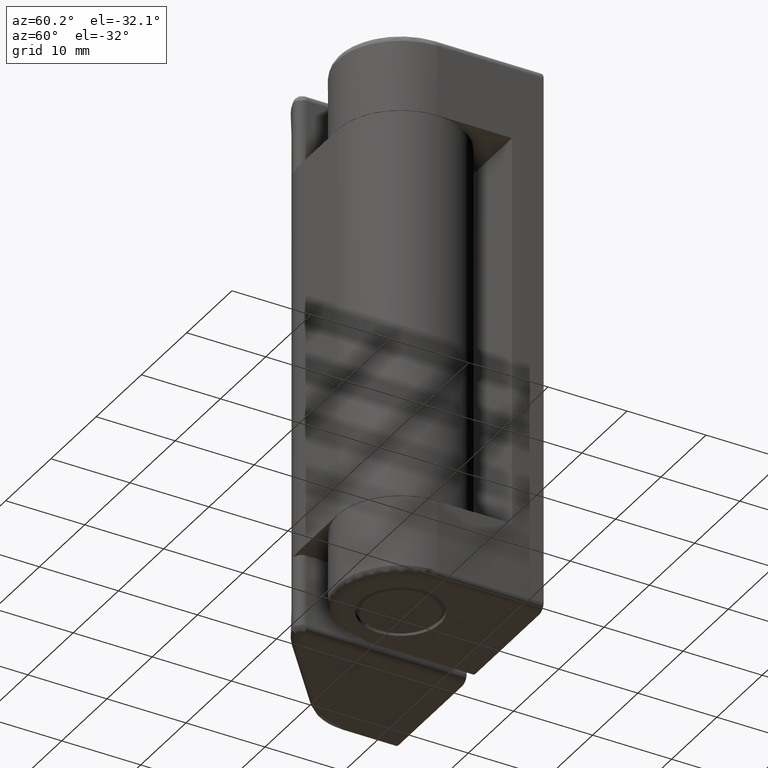
[diagram: clean part render]
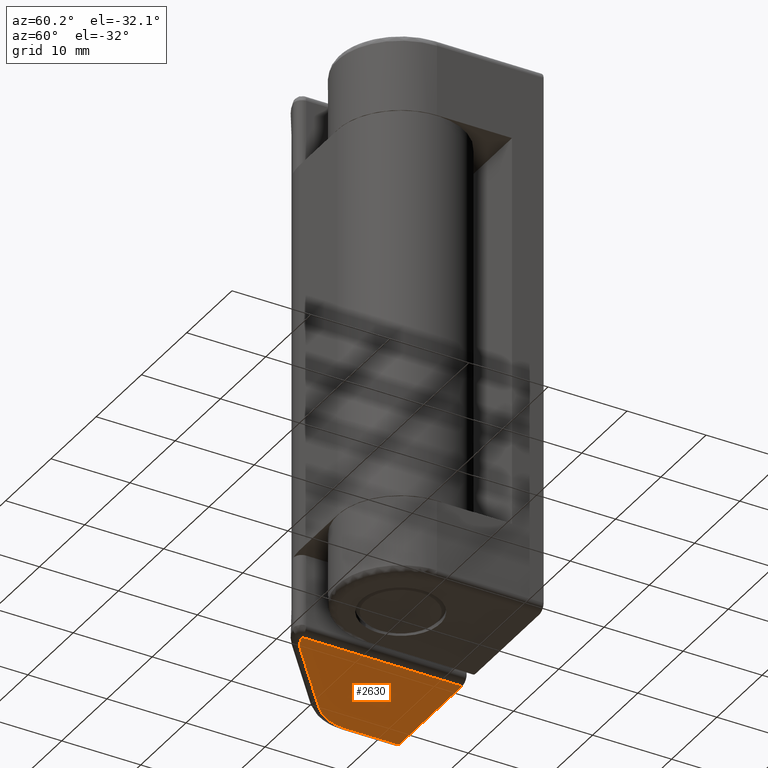
[diagram: same view with one face highlighted and labeled with its STEP entity id]
A machine part, auxiliary view. The second image highlights one B-rep face of the part: STEP entity #2630.
In plain terms, the highlighted face is a freeform B-spline surface patch.
Its self-contained STEP definition (entity closure, byte-faithful):
#1637=CARTESIAN_POINT('',(-24.0,13.500000000000000,0.0));
#1638=VERTEX_POINT('',#1637);
#1654=CARTESIAN_POINT('',(-24.0,6.808834000000000,0.0));
#1655=VERTEX_POINT('',#1654);
#1656=CARTESIAN_POINT('',(-24.0,6.808834000000000,0.0));
#1657=CARTESIAN_POINT('',(-24.0,13.500000000000000,0.0));
#1658=QUASI_UNIFORM_CURVE('',1,(#1656,#1657),.UNSPECIFIED.,.F.,.U.);
#1659=EDGE_CURVE('',#1655,#1638,#1658,.T.);
#1701=CARTESIAN_POINT('',(-21.812655122359558,2.175945489777225,0.0));
#1702=VERTEX_POINT('',#1701);
#1732=CARTESIAN_POINT('',(-21.812655122359558,2.175945489777225,0.0));
#1733=CARTESIAN_POINT('',(-24.000000000000004,3.976029637885988,0.0));
#1734=CARTESIAN_POINT('',(-24.0,6.808834000000000,0.0));
#1742=(BOUNDED_CURVE()B_SPLINE_CURVE(2,(#1732,#1733,#1734),.UNSPECIFIED.,.F.,.U.)CURVE()GEOMETRIC_REPRESENTATION_ITEM()QUASI_UNIFORM_CURVE()RATIONAL_B_SPLINE_CURVE((1.0,0.904279427017613,1.0))REPRESENTATION_ITEM(''));
#1743=EDGE_CURVE('',#1702,#1655,#1742,.T.);
#1762=CARTESIAN_POINT('',(-12.302027913291660,-5.636357220650260,0.0));
#1763=VERTEX_POINT('',#1762);
#1785=CARTESIAN_POINT('',(-12.302027913291660,-5.636357220650260,0.0));
#1786=CARTESIAN_POINT('',(-21.812655122359558,2.175945489777225,0.0));
#1787=QUASI_UNIFORM_CURVE('',1,(#1785,#1786),.UNSPECIFIED.,.F.,.U.);
#1788=EDGE_CURVE('',#1763,#1702,#1787,.T.);
#1810=CARTESIAN_POINT('',(-9.999999999999799,-6.807816000000001,0.0));
#1811=VERTEX_POINT('',#1810);
#1841=CARTESIAN_POINT('',(-9.999999999999799,-6.807816000000001,0.0));
#1842=CARTESIAN_POINT('',(-11.280116214478753,-6.475784825268291,0.0));
#1843=CARTESIAN_POINT('',(-12.302027913291671,-5.636357220650270,0.0));
#1851=(BOUNDED_CURVE()B_SPLINE_CURVE(2,(#1841,#1842,#1843),.UNSPECIFIED.,.F.,.U.)CURVE()GEOMETRIC_REPRESENTATION_ITEM()QUASI_UNIFORM_CURVE()RATIONAL_B_SPLINE_CURVE((1.0,0.976559832501736,1.0))REPRESENTATION_ITEM(''));
#1852=EDGE_CURVE('',#1811,#1763,#1851,.T.);
#1931=CARTESIAN_POINT('',(-9.999999999999799,13.500000000000000,0.0));
#1932=VERTEX_POINT('',#1931);
#1952=CARTESIAN_POINT('',(-9.999999999999799,13.500000000000000,0.0));
#1953=CARTESIAN_POINT('',(-9.999999999999799,-6.807816000000001,0.0));
#1954=QUASI_UNIFORM_CURVE('',1,(#1952,#1953),.UNSPECIFIED.,.F.,.U.);
#1955=EDGE_CURVE('',#1932,#1811,#1954,.T.);
#2613=CARTESIAN_POINT('',(-24.699299972865301,-7.822191369839513,0.0));
#2614=CARTESIAN_POINT('',(-9.300699651625243,-7.822191369839513,0.0));
#2615=CARTESIAN_POINT('',(-24.699299972865301,14.514375914537590,0.0));
#2616=CARTESIAN_POINT('',(-9.300699651625243,14.514375914537590,0.0));
#2617=B_SPLINE_SURFACE_WITH_KNOTS('',1,1,((#2613,#2615),(#2614,#2616)),.UNSPECIFIED.,.F.,.F.,.U.,(2,2),(2,2),(0.0,15.398600321240060),(0.0,22.336567284377100),.UNSPECIFIED.);
#2618=ORIENTED_EDGE('',*,*,#1743,.T.);
#2619=ORIENTED_EDGE('',*,*,#1659,.T.);
#2620=CARTESIAN_POINT('',(-9.999999999999799,13.500000000000000,0.0));
#2621=CARTESIAN_POINT('',(-24.0,13.500000000000000,0.0));
#2622=QUASI_UNIFORM_CURVE('',1,(#2620,#2621),.UNSPECIFIED.,.F.,.U.);
#2623=EDGE_CURVE('',#1932,#1638,#2622,.T.);
#2624=ORIENTED_EDGE('',*,*,#2623,.F.);
#2625=ORIENTED_EDGE('',*,*,#1955,.T.);
#2626=ORIENTED_EDGE('',*,*,#1852,.T.);
#2627=ORIENTED_EDGE('',*,*,#1788,.T.);
#2628=EDGE_LOOP('',(#2618,#2619,#2624,#2625,#2626,#2627));
#2629=FACE_OUTER_BOUND('',#2628,.T.);
#2630=ADVANCED_FACE('',(#2629),#2617,.F.);